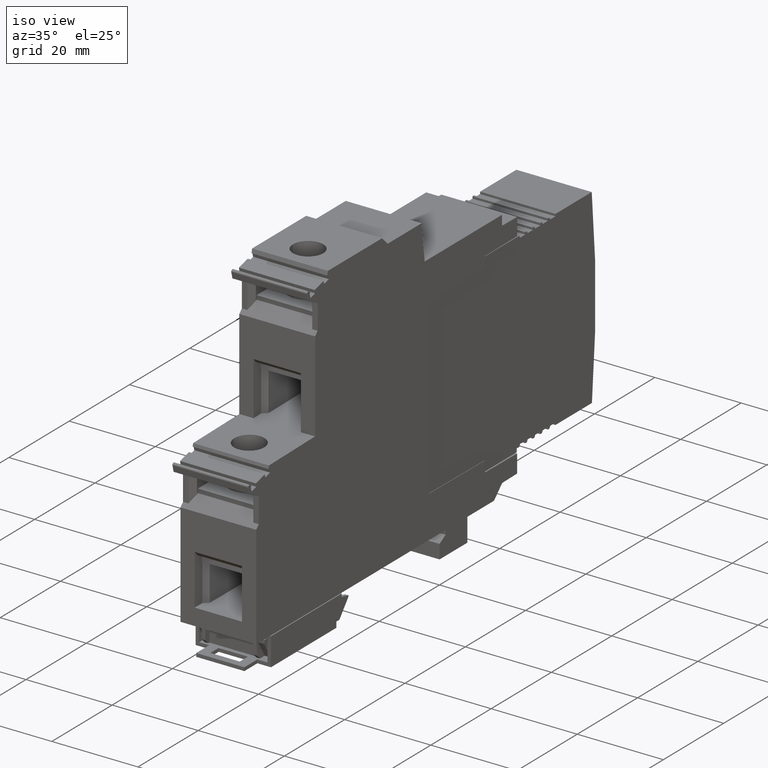
[diagram: clean part render]
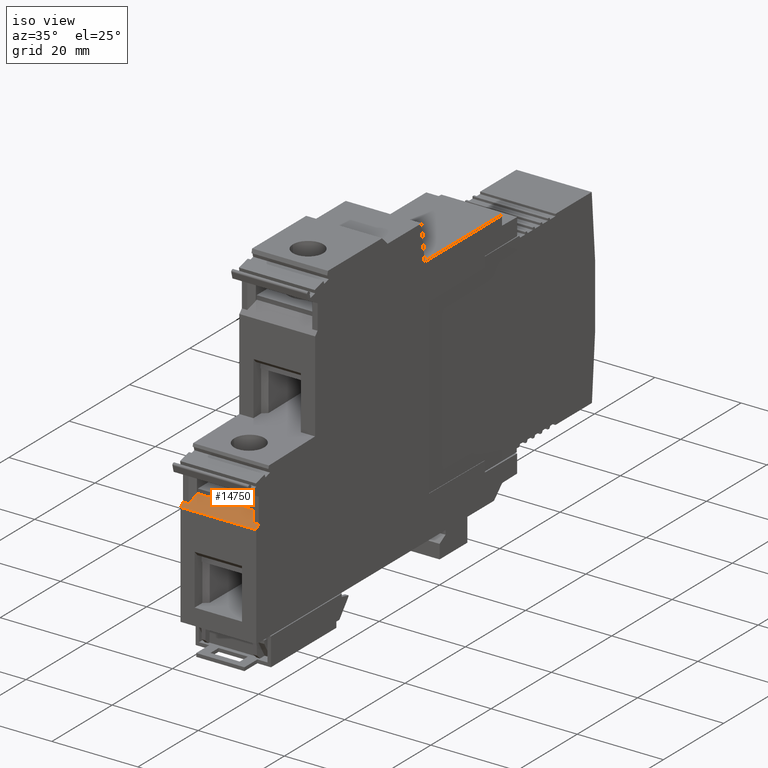
[diagram: same view with one face highlighted and labeled with its STEP entity id]
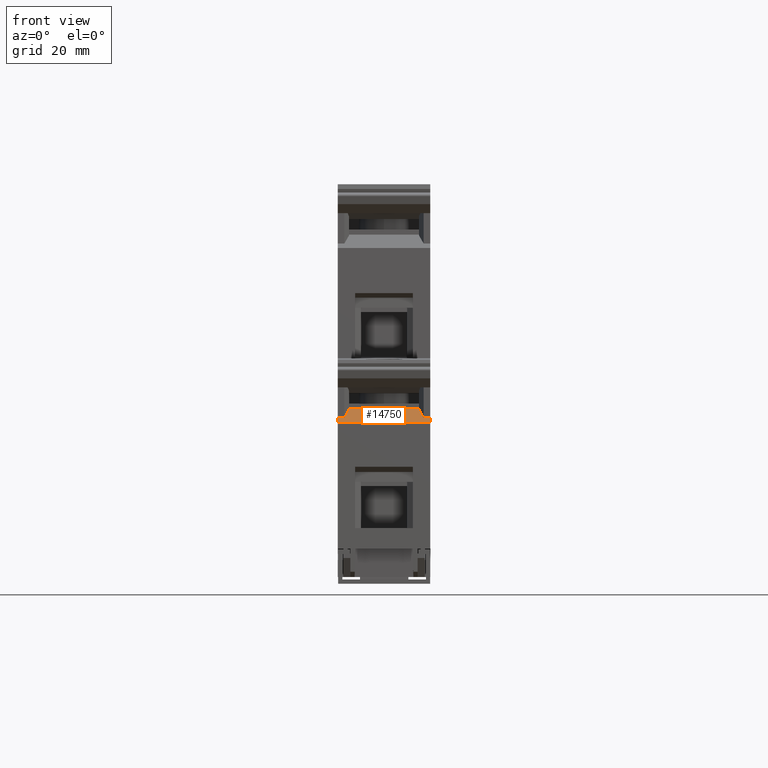
[diagram: same view with one face highlighted and labeled with its STEP entity id]
A machine part, iso view. The second image highlights one B-rep face of the part: STEP entity #14750.
A second angle (front view) of the same face is appended — the face is thin or edge-on in the first view.
In plain terms, the highlighted planar face has unit normal (0, 0.7071, -0.7071).
Its self-contained STEP definition (entity closure, byte-faithful):
#7770=CARTESIAN_POINT('',(5.76148759322794,-8.66541060671737,
17.5999999999704));
#7780=VERTEX_POINT('',#7770);
#7810=CARTESIAN_POINT('',(-24.8733106753327,21.9693876618405,
17.5999999999704));
#7820=DIRECTION('',(0.70710678118658,-0.707106781186515,
4.17487700344457E-17));
#7830=VECTOR('',#7820,1.);
#7840=LINE('',#7810,#7830);
#7850=CARTESIAN_POINT('',(4.91148759322796,-7.81541060671746,
17.5999999999704));
#7860=VERTEX_POINT('',#7850);
#7870=EDGE_CURVE('',#7860,#7780,#7840,.T.);
#13970=CARTESIAN_POINT('',(4.91148759322796,-7.81541060671746,
-5.00172821294476E-10));
#13980=DIRECTION('',(0.707106781186515,0.70710678118658,
4.17050987279807E-17));
#13990=DIRECTION('',(-0.70710678118658,0.707106781186515,
-4.17050987279859E-17));
#14000=AXIS2_PLACEMENT_3D('',#13970,#13980,#13990);
#14010=PLANE('',#14000);
#14020=CARTESIAN_POINT('',(-28.6243628162101,25.7204398027176,
-3.04061410291903E-11));
#14030=DIRECTION('',(0.70710678118658,-0.707106781186515,
4.17050987279859E-17));
#14040=VECTOR('',#14030,1.);
#14050=LINE('',#14020,#14040);
#14060=CARTESIAN_POINT('',(4.91148759322796,-7.81541060671746,
1.66417170093229E-11));
#14070=VERTEX_POINT('',#14060);
#14080=CARTESIAN_POINT('',(5.76148759322794,-8.66541060671736,
1.66418504671819E-11));
#14090=VERTEX_POINT('',#14080);
#14100=EDGE_CURVE('',#14070,#14090,#14050,.T.);
#14110=ORIENTED_EDGE('',*,*,#14100,.T.);
#14120=CARTESIAN_POINT('',(4.91148759322796,-7.81541060671746,
0.000536643954589937));
#14130=DIRECTION('',(-5.8979916241223E-17,1.00724932385237E-30,1.));
#14140=VECTOR('',#14130,1.);
#14150=LINE('',#14120,#14140);
#14160=CARTESIAN_POINT('',(4.91148759322797,-7.81541060671746,
1.26097438758798));
#14170=VERTEX_POINT('',#14160);
#14180=EDGE_CURVE('',#14070,#14170,#14150,.T.);
#14190=ORIENTED_EDGE('',*,*,#14180,.F.);
#14200=CARTESIAN_POINT('',(5.53529701609111,-8.43922002958055,
0.900817849374948));
#14210=DIRECTION('',(0.654653670708011,-0.654653670707952,
-0.377964473009213));
#14220=VECTOR('',#14210,1.);
#14230=LINE('',#14200,#14220);
#14240=CARTESIAN_POINT('',(3.37165006334942,-6.27557307683906,
2.14999999997156));
#14250=VERTEX_POINT('',#14240);
#14260=EDGE_CURVE('',#14250,#14170,#14230,.T.);
#14270=ORIENTED_EDGE('',*,*,#14260,.T.);
#14280=CARTESIAN_POINT('',(5.53529701609111,-8.43922002958055,
2.14999999997157));
#14290=DIRECTION('',(0.70710678118658,-0.707106781186515,
4.17050987279859E-17));
#14300=VECTOR('',#14290,1.);
#14310=LINE('',#14280,#14300);
#14320=CARTESIAN_POINT('',(3.2209225290062,-6.12484554249585,
2.14999999997157));
#14330=VERTEX_POINT('',#14320);
#14340=EDGE_CURVE('',#14330,#14250,#14310,.T.);
#14350=ORIENTED_EDGE('',*,*,#14340,.T.);
#14360=CARTESIAN_POINT('',(3.2209225290062,-6.12484554249587,
-5.00172920999851E-10));
#14370=DIRECTION('',(5.8979916241223E-17,-1.00724932385237E-30,-1.));
#14380=VECTOR('',#14370,1.);
#14390=LINE('',#14360,#14380);
#14400=CARTESIAN_POINT('',(3.2209225290062,-6.12484554249585,
15.4499999990281));
#14410=VERTEX_POINT('',#14400);
#14420=EDGE_CURVE('',#14410,#14330,#14390,.T.);
#14430=ORIENTED_EDGE('',*,*,#14420,.T.);
#14440=CARTESIAN_POINT('',(5.53529701609111,-8.43922002958055,
15.4499999990281));
#14450=DIRECTION('',(0.70710678118658,-0.707106781186515,
4.17050987279859E-17));
#14460=VECTOR('',#14450,1.);
#14470=LINE('',#14440,#14460);
#14480=CARTESIAN_POINT('',(3.37165006334942,-6.27557307683906,
15.4499999990281));
#14490=VERTEX_POINT('',#14480);
#14500=EDGE_CURVE('',#14410,#14490,#14470,.T.);
#14510=ORIENTED_EDGE('',*,*,#14500,.F.);
#14520=CARTESIAN_POINT('',(5.53529701609111,-8.43922002958055,
16.6991821496247));
#14530=DIRECTION('',(0.654653670708011,-0.654653670707952,
0.377964473009213));
#14540=VECTOR('',#14530,1.);
#14550=LINE('',#14520,#14540);
#14560=CARTESIAN_POINT('',(4.91148759322796,-7.81541060671746,
16.3390256114117));
#14570=VERTEX_POINT('',#14560);
#14580=EDGE_CURVE('',#14490,#14570,#14550,.T.);
#14590=ORIENTED_EDGE('',*,*,#14580,.F.);
#14600=CARTESIAN_POINT('',(4.91148759322796,-7.81541060671746,
-3.0403702724091E-11));
#14610=DIRECTION('',(5.8979916241223E-17,-1.00724932385237E-30,-1.));
#14620=VECTOR('',#14610,1.);
#14630=LINE('',#14600,#14620);
#14640=EDGE_CURVE('',#7860,#14570,#14630,.T.);
#14650=ORIENTED_EDGE('',*,*,#14640,.T.);
#14660=ORIENTED_EDGE('',*,*,#7870,.F.);
#14670=CARTESIAN_POINT('',(5.76148759322794,-8.66541060671737,
-3.04036525386658E-11));
#14680=DIRECTION('',(5.8979916241223E-17,-1.00724932385237E-30,-1.));
#14690=VECTOR('',#14680,1.);
#14700=LINE('',#14670,#14690);
#14710=EDGE_CURVE('',#7780,#14090,#14700,.T.);
#14720=ORIENTED_EDGE('',*,*,#14710,.F.);
#14730=EDGE_LOOP('',(#14720,#14660,#14650,#14590,#14510,#14430,#14350,
#14270,#14190,#14110));
#14740=FACE_OUTER_BOUND('',#14730,.T.);
#14750=ADVANCED_FACE('',(#14740),#14010,.F.);